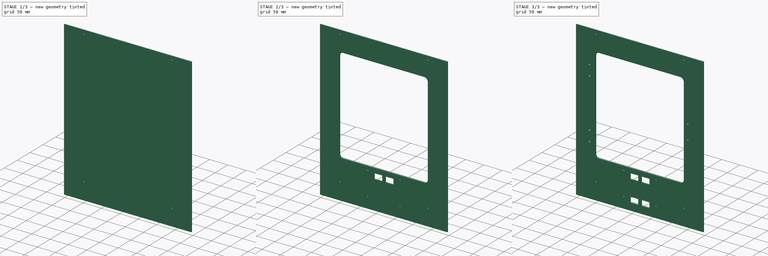
[diagram: build sequence overview — one tinted view per stage of 3, left to right]
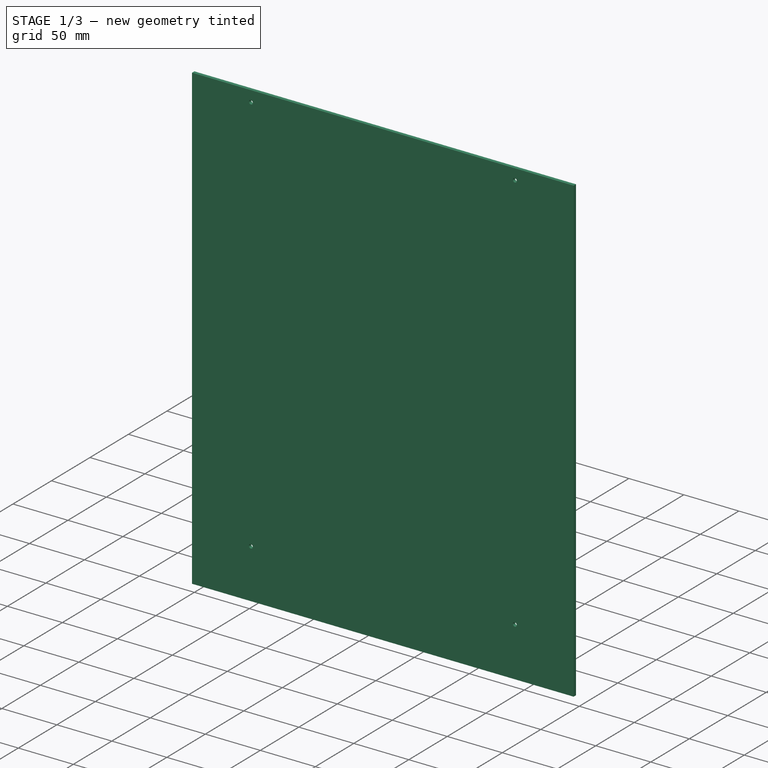
[diagram: stage 1 of 3 — iso view after this stage's code; geometry added in this stage tinted green]
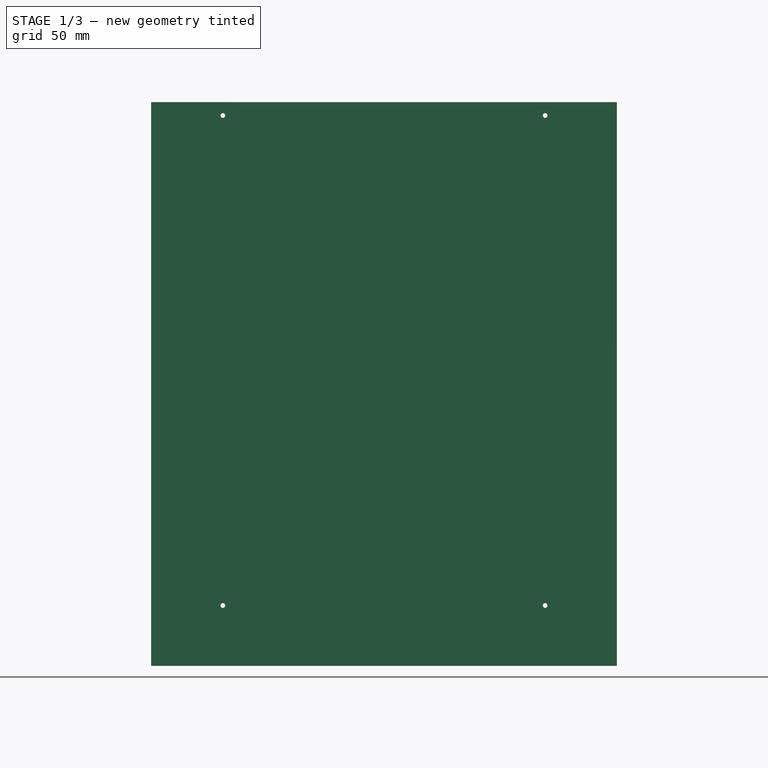
[diagram: stage 1 of 3 — front view after this stage's code; geometry added in this stage tinted green]
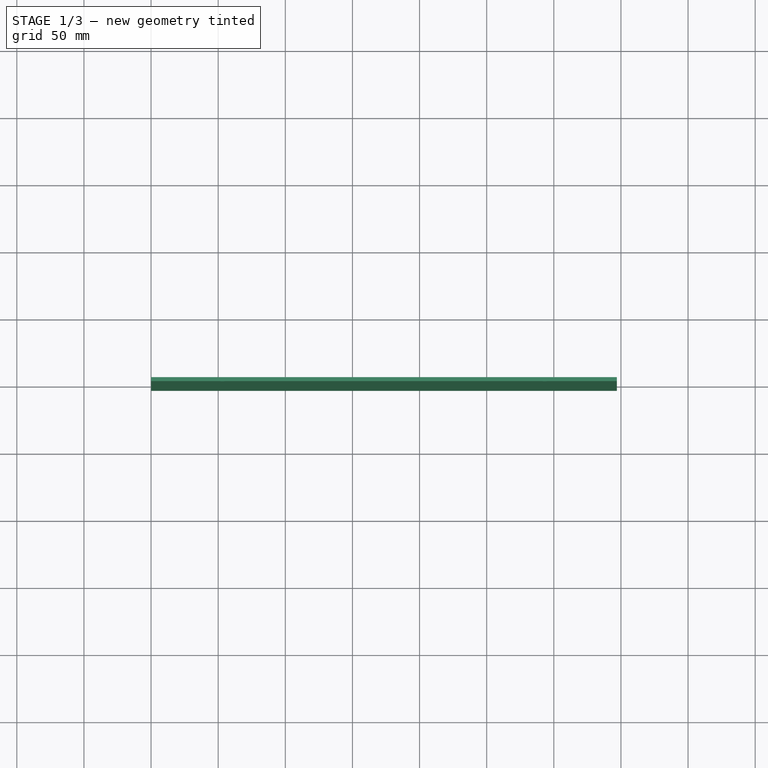
[diagram: stage 1 of 3 — top view after this stage's code; geometry added in this stage tinted green]
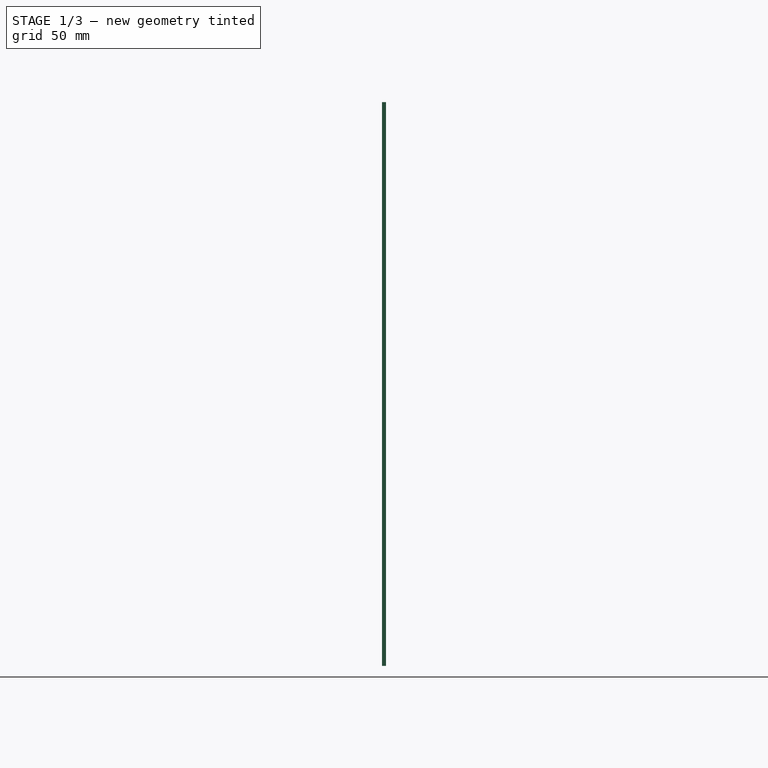
[diagram: stage 1 of 3 — right view after this stage's code; geometry added in this stage tinted green]
FCSTD DOCUMENT  (FreeCAD 0.17R13519 (Git))
Label: Corelia_0_Front_plate_LEGD30311
License: All rights reserved
LicenseURL: http://en.wikipedia.org/wiki/All_rights_reserved
objects: Sketcher::SketchObject×6, PartDesign::Pocket×5, PartDesign::Pad×1, PartDesign::LinearPattern×1, PartDesign::Body×1, TechDraw::DrawSVGTemplate×1, TechDraw::DrawViewPart×1, TechDraw::DrawPage×1
note: 20 computed .brp shape members not serialized (recipe doc carries the construction recipe); baked Part::Feature solids carry a one-line shape summary decoded from their .brp

FEATURE [Sketcher::SketchObject] Sketch
  MapMode = 5
  Placement = pos=(0,0,0) rot=(1,0,0;1.5708rad)
  Support = -> [XZ_Plane]
  sketch-geometry (4):
    g0: LineSegment StartX=0 StartY=0 StartZ=0 EndX=347 EndY=0 EndZ=0
    g1: LineSegment StartX=347 StartY=0 StartZ=0 EndX=347 EndY=420 EndZ=0
    g2: LineSegment StartX=347 StartY=420 StartZ=0 EndX=0 EndY=420 EndZ=0
    g3: LineSegment StartX=0 StartY=420 StartZ=0 EndX=0 EndY=0 EndZ=0
  constraints (11):
    c: Coincident(g0,g1)
    c: Coincident(g1,g2)
    c: Coincident(g2,g3)
    c: Coincident(g3,g0)
    c: Horizontal(g0)
    c: Horizontal(g2)
    c: Vertical(g1)
    c: Vertical(g3)
    c: Coincident(g0,g-1)
    c: DistanceY(g3,g3) = 420
    c: DistanceX(g0,g0) = 347
FEATURE [PartDesign::Pad] Pad
  Length = 3
  Length2 = 100
  Placement = pos=(0,0,0) rot=(1,0,0;1.5708rad)
  Profile = -> Sketch
  Type = 0
FEATURE [Sketcher::SketchObject] Sketch001
  MapMode = 5
  Placement = pos=(0,-3,0) rot=(1,0,0;1.5708rad)
  Support = -> [Pad]
  sketch-geometry (8):
    g0: LineSegment [constr] StartX=53.5 StartY=410 StartZ=0 EndX=293.5 EndY=410 EndZ=0
    g1: LineSegment [constr] StartX=293.5 StartY=410 StartZ=0 EndX=293.5 EndY=45 EndZ=0
    g2: LineSegment [constr] StartX=293.5 StartY=45 StartZ=0 EndX=53.5 EndY=45 EndZ=0
    g3: LineSegment [constr] StartX=53.5 StartY=45 StartZ=0 EndX=53.5 EndY=410 EndZ=0
    g4: Circle CenterX=53.5 CenterY=45 CenterZ=0 NormalX=0 NormalY=0 NormalZ=1 AngleXU=0 Radius=1.75
    g5: Circle CenterX=293.5 CenterY=45 CenterZ=0 NormalX=0 NormalY=0 NormalZ=1 AngleXU=0 Radius=1.75
    g6: Circle CenterX=293.5 CenterY=410 CenterZ=0 NormalX=0 NormalY=0 NormalZ=1 AngleXU=0 Radius=1.75
    g7: Circle CenterX=53.5 CenterY=410 CenterZ=0 NormalX=0 NormalY=0 NormalZ=1 AngleXU=0 Radius=1.75
  constraints (20):
    c: Coincident(g0,g1)
    c: Coincident(g1,g2)
    c: Coincident(g2,g3)
    c: Coincident(g3,g0)
    c: Horizontal(g0)
    c: Horizontal(g2)
    c: Vertical(g1)
    c: Vertical(g3)
    c: Coincident(g4,g2)
    c: Coincident(g5,g1)
    c: Coincident(g6,g0)
    c: Coincident(g7,g0)
    c: Equal(g7,g4)
    c: Equal(g4,g5)
    c: Equal(g5,g6)
    c: Radius(g7) = 1.75
    c: DistanceY(g3,g3) = 365
    c: DistanceX(g0,g0) = 240
    c: DistanceX(g2) = 53.5
    c: DistanceY(g2) = 45
FEATURE [PartDesign::Pocket] Pocket
  BaseFeature = -> Pad
  Length = 5
  Length2 = 100
  Placement = pos=(0,0,0) rot=(1,0,0;1.5708rad)
  Profile = -> Sketch001
  Type = 1
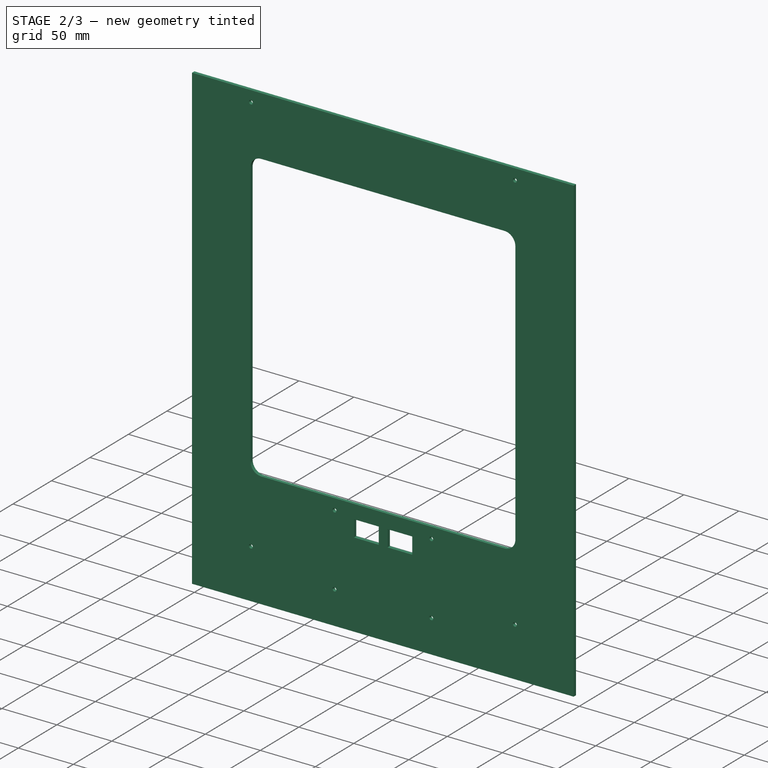
[diagram: stage 2 of 3 — iso view after this stage's code; geometry added in this stage tinted green]
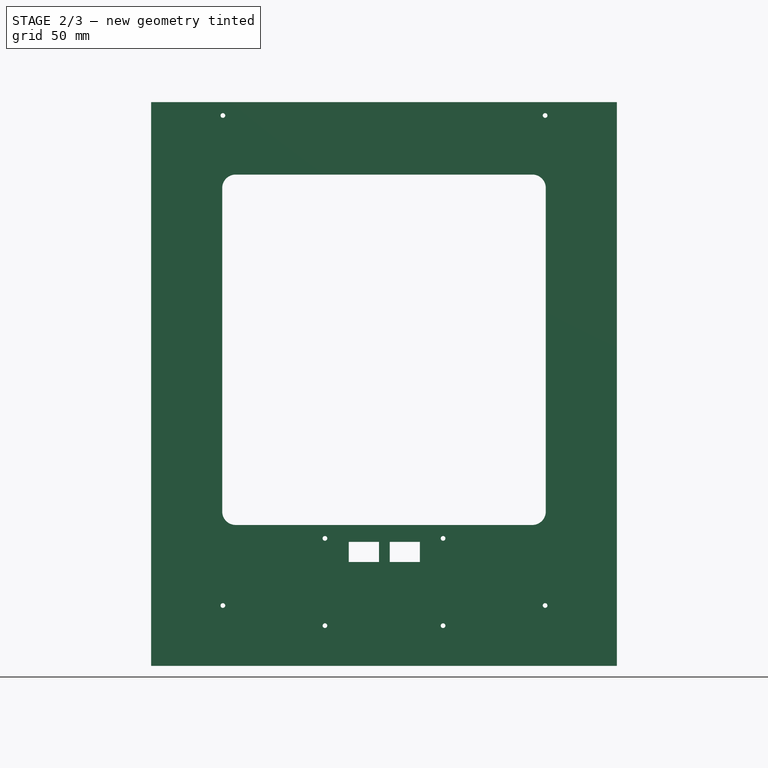
[diagram: stage 2 of 3 — front view after this stage's code; geometry added in this stage tinted green]
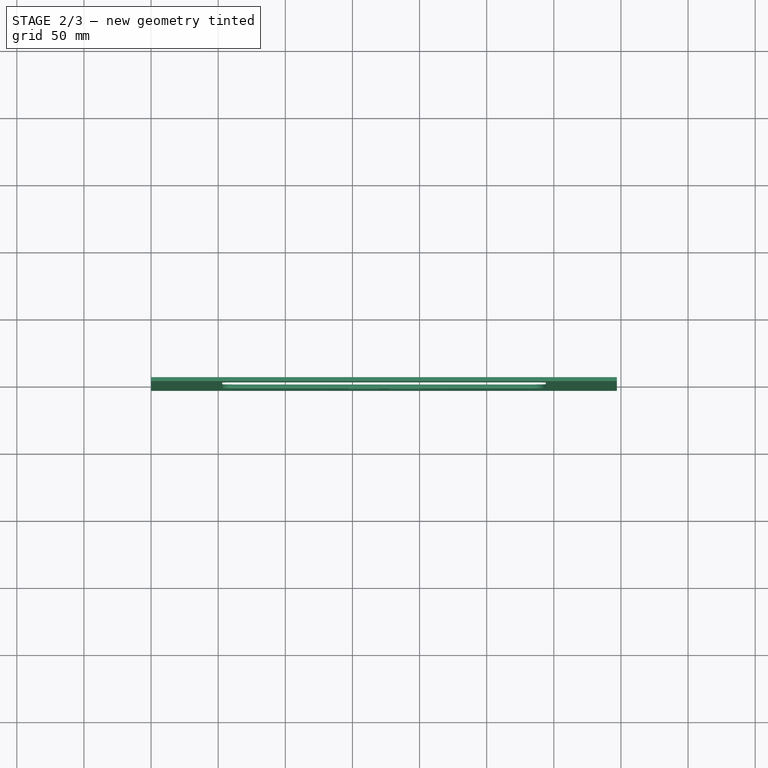
[diagram: stage 2 of 3 — top view after this stage's code; geometry added in this stage tinted green]
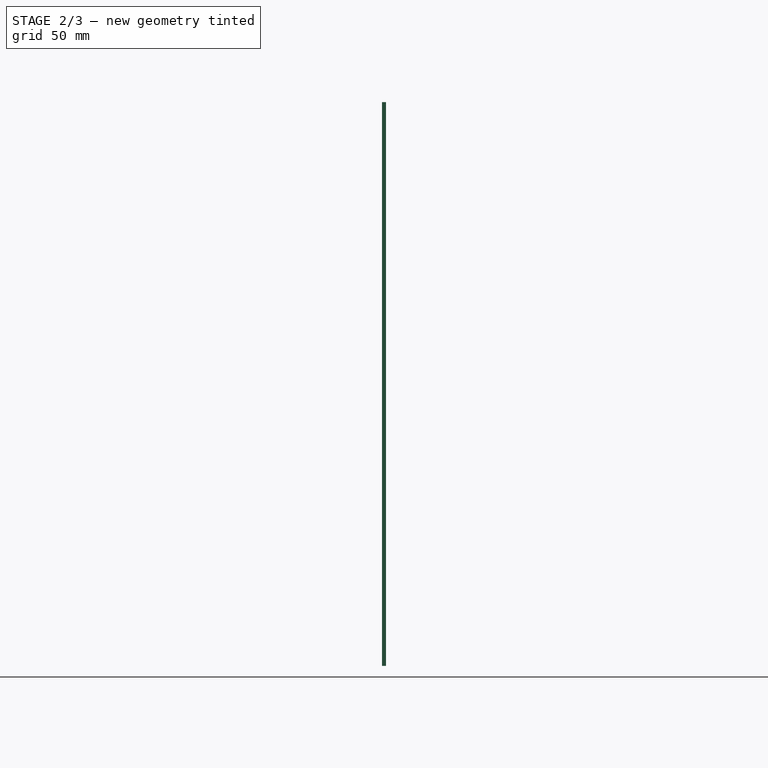
[diagram: stage 2 of 3 — right view after this stage's code; geometry added in this stage tinted green]
FEATURE [Sketcher::SketchObject] Sketch002
  MapMode = 5
  Placement = pos=(0,-3,0) rot=(1,0,0;1.5708rad)
  Support = -> [Pocket]
  sketch-geometry (8):
    g0: LineSegment StartX=53 StartY=356 StartZ=0 EndX=53 EndY=115 EndZ=0
    g1: LineSegment StartX=63 StartY=105 StartZ=0 EndX=284 EndY=105 EndZ=0
    g2: LineSegment StartX=294 StartY=115 StartZ=0 EndX=294 EndY=356 EndZ=0
    g3: LineSegment StartX=284 StartY=366 StartZ=0 EndX=63 EndY=366 EndZ=0
    g4: ArcOfCircle CenterX=63 CenterY=356 CenterZ=0 NormalX=0 NormalY=0 NormalZ=1 AngleXU=0 Radius=10 StartAngle=1.5708 EndAngle=3.14159
    g5: ArcOfCircle CenterX=284 CenterY=356 CenterZ=0 NormalX=0 NormalY=0 NormalZ=1 AngleXU=0 Radius=10 StartAngle=0 EndAngle=1.5708
    g6: ArcOfCircle CenterX=284 CenterY=115 CenterZ=0 NormalX=0 NormalY=0 NormalZ=1 AngleXU=0 Radius=10 StartAngle=4.71239 EndAngle=6.28319
    g7: ArcOfCircle CenterX=63 CenterY=115 CenterZ=0 NormalX=0 NormalY=0 NormalZ=1 AngleXU=0 Radius=10 StartAngle=3.14159 EndAngle=4.71239
  constraints (21):
    c: Vertical(g0)
    c: Vertical(g2)
    c: Horizontal(g3)
    c: Equal(g0,g2)
    c: Horizontal(g1)
    c: Tangent(g0,g4) = -1.5708
    c: Tangent(g3,g4) = -1.5708
    c: Tangent(g2,g5) = -1.5708
    c: Tangent(g3,g5) = -1.5708
    c: Tangent(g2,g6) = -1.5708
    c: Tangent(g0,g7) = -1.5708
    c: Tangent(g1,g7) = -1.5708
    c: Equal(g7,g5)
    c: Equal(g5,g6)
    c: Radius(g4) = 10
    c: DistanceX(g0,g2) = 241
    c: DistanceY(g1,g3) = 261
    c: Coincident(g1,g6)
    c: DistanceX(g-1,g0) = 53
    c: DistanceY(g1) = 105
    c: Equal(g3,g1)
FEATURE [PartDesign::Pocket] Pocket001
  BaseFeature = -> Pocket
  Length = 5
  Length2 = 100
  Placement = pos=(0,0,0) rot=(1,0,0;1.5708rad)
  Profile = -> Sketch002
  Type = 0
FEATURE [Sketcher::SketchObject] Sketch003
  MapMode = 5
  Placement = pos=(0,-3,0) rot=(1,0,0;1.5708rad)
  Support = -> [Pocket001]
  sketch-geometry (8):
    g0: LineSegment [constr] StartX=129.5 StartY=95 StartZ=0 EndX=217.5 EndY=95 EndZ=0
    g1: LineSegment [constr] StartX=217.5 StartY=95 StartZ=0 EndX=217.5 EndY=30 EndZ=0
    g2: LineSegment [constr] StartX=217.5 StartY=30 StartZ=0 EndX=129.5 EndY=30 EndZ=0
    g3: LineSegment [constr] StartX=129.5 StartY=30 StartZ=0 EndX=129.5 EndY=95 EndZ=0
    g4: Circle CenterX=129.5 CenterY=30 CenterZ=0 NormalX=0 NormalY=0 NormalZ=1 AngleXU=0 Radius=1.75
    g5: Circle CenterX=129.5 CenterY=95 CenterZ=0 NormalX=0 NormalY=0 NormalZ=1 AngleXU=0 Radius=1.75
    g6: Circle CenterX=217.5 CenterY=95 CenterZ=0 NormalX=0 NormalY=0 NormalZ=1 AngleXU=0 Radius=1.75
    g7: Circle CenterX=217.5 CenterY=30 CenterZ=0 NormalX=0 NormalY=0 NormalZ=1 AngleXU=0 Radius=1.75
  constraints (20):
    c: Coincident(g0,g1)
    c: Coincident(g1,g2)
    c: Coincident(g2,g3)
    c: Coincident(g3,g0)
    c: Horizontal(g0)
    c: Horizontal(g2)
    c: Vertical(g1)
    c: Vertical(g3)
    c: Coincident(g4,g2)
    c: Coincident(g5,g0)
    c: Coincident(g6,g0)
    c: Coincident(g7,g1)
    c: Equal(g5,g4)
    c: Equal(g4,g7)
    c: Equal(g7,g6)
    c: Radius(g5) = 1.75
    c: DistanceY(g3,g3) = 65
    c: DistanceX(g2,g2) = 88
    c: DistanceX(g2) = 129.5
    c: DistanceY(g2) = 30
FEATURE [PartDesign::Pocket] Pocket002
  BaseFeature = -> Pocket001
  Length = 5
  Length2 = 100
  Placement = pos=(0,0,0) rot=(1,0,0;1.5708rad)
  Profile = -> Sketch003
  Type = 1
FEATURE [Sketcher::SketchObject] Sketch005
  ExternalGeometry = -> [Pocket002]
  MapMode = 5
  Placement = pos=(0,-3,0) rot=(1,0,0;1.5708rad)
  Support = -> [Pocket002]
  sketch-geometry (8):
    g0: LineSegment StartX=147.25 StartY=92.4 StartZ=0 EndX=169.75 EndY=92.4 EndZ=0
    g1: LineSegment StartX=169.75 StartY=92.4 StartZ=0 EndX=169.75 EndY=77.4 EndZ=0
    g2: LineSegment StartX=169.75 StartY=77.4 StartZ=0 EndX=147.25 EndY=77.4 EndZ=0
    g3: LineSegment StartX=147.25 StartY=77.4 StartZ=0 EndX=147.25 EndY=92.4 EndZ=0
    g4: LineSegment StartX=177.75 StartY=92.4 StartZ=0 EndX=200.25 EndY=92.4 EndZ=0
    g5: LineSegment StartX=200.25 StartY=92.4 StartZ=0 EndX=200.25 EndY=77.4 EndZ=0
    g6: LineSegment StartX=200.25 StartY=77.4 StartZ=0 EndX=177.75 EndY=77.4 EndZ=0
    g7: LineSegment StartX=177.75 StartY=77.4 StartZ=0 EndX=177.75 EndY=92.4 EndZ=0
  constraints (24):
    c: Coincident(g0,g1)
    c: Coincident(g1,g2)
    c: Coincident(g2,g3)
    c: Coincident(g3,g0)
    c: Horizontal(g0)
    c: Horizontal(g2)
    c: Vertical(g1)
    c: Vertical(g3)
    c: Coincident(g4,g5)
    c: Coincident(g5,g6)
    c: Coincident(g6,g7)
    c: Coincident(g7,g4)
    c: Horizontal(g4)
    c: Horizontal(g6)
    c: Vertical(g5)
    c: Vertical(g7)
    c: Equal(g3,g7)
    c: Equal(g0,g4)
    c: PointOnObject(g4,g0)
    c: DistanceX(g0,g4) = 8
    c: DistanceX(g0,g0) = 22.5
    c: DistanceY(g3,g3) = 15
    c: DistanceX(g2) = 147.25
    c: DistanceY(g2) = 77.4
FEATURE [PartDesign::Pocket] Pocket003
  BaseFeature = -> Pocket002
  Length = 3
  Length2 = 100
  Placement = pos=(0,0,0) rot=(1,0,0;1.5708rad)
  Profile = -> Sketch005
  Type = 0
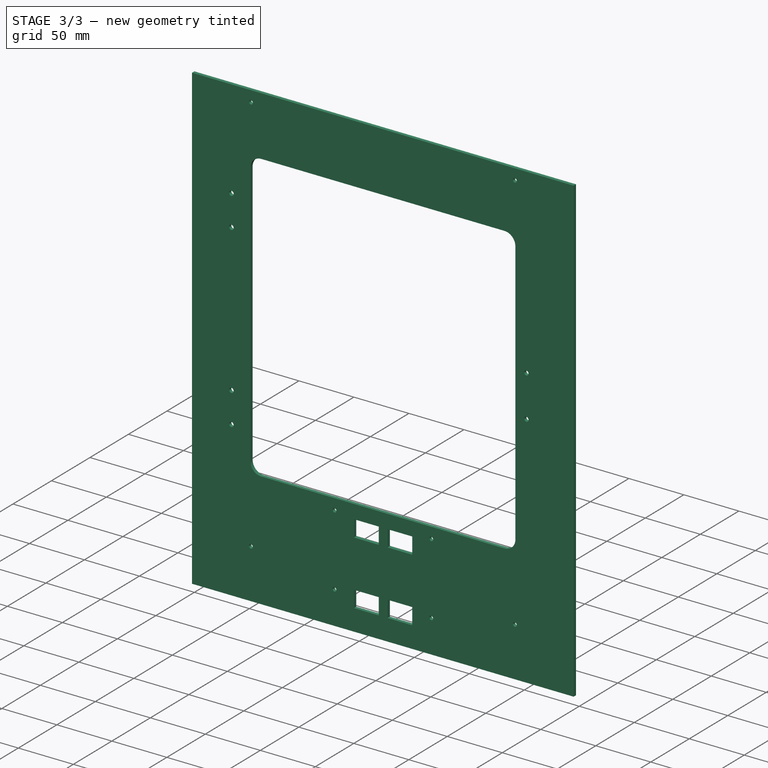
[diagram: stage 3 of 3 — iso view after this stage's code; geometry added in this stage tinted green]
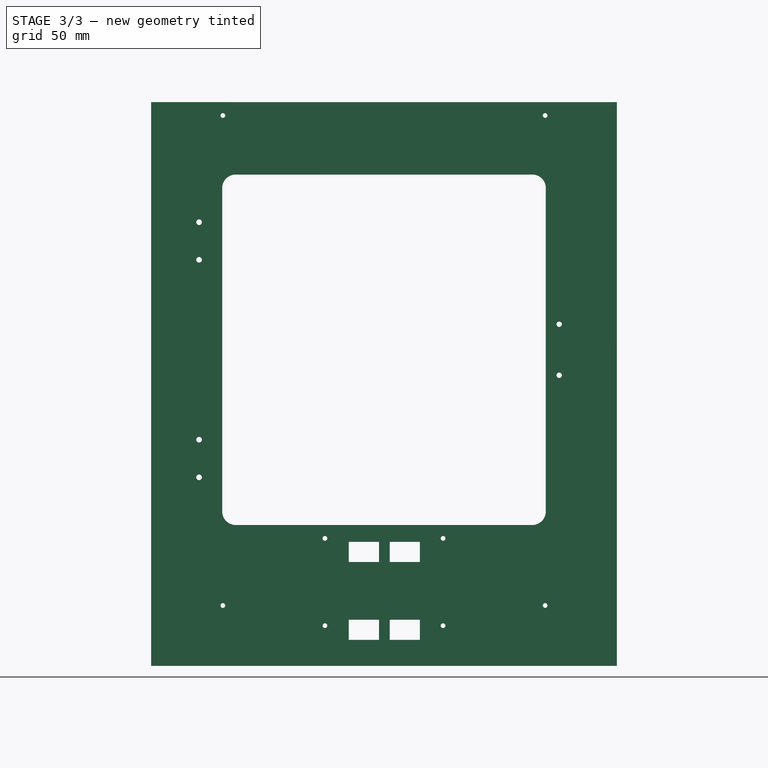
[diagram: stage 3 of 3 — front view after this stage's code; geometry added in this stage tinted green]
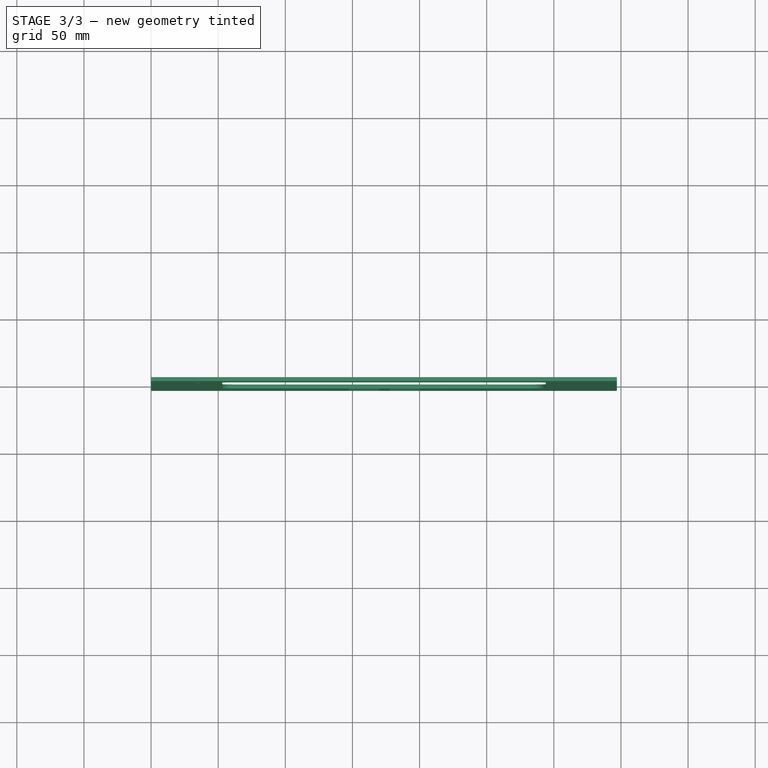
[diagram: stage 3 of 3 — top view after this stage's code; geometry added in this stage tinted green]
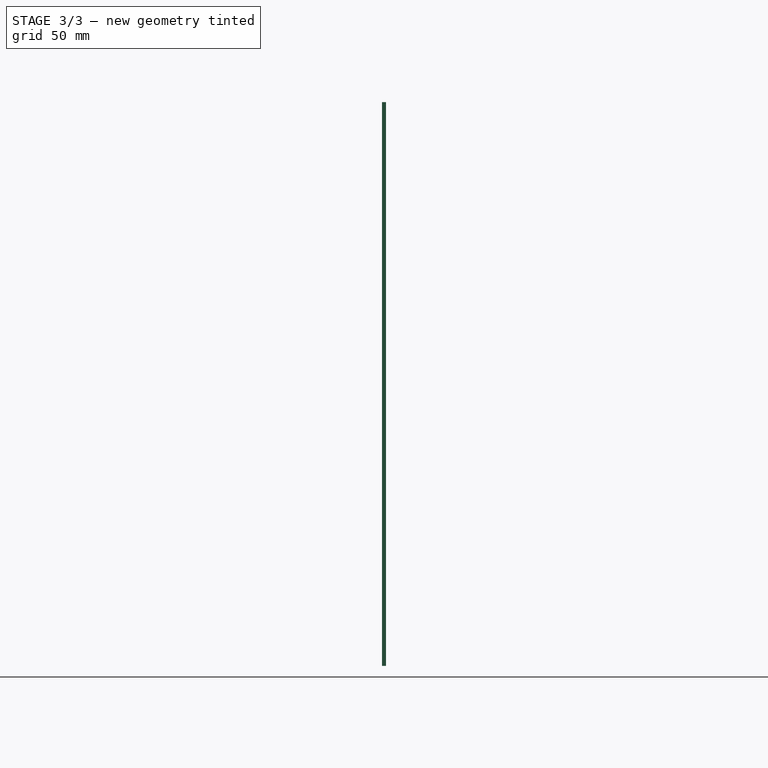
[diagram: stage 3 of 3 — right view after this stage's code; geometry added in this stage tinted green]
FEATURE [PartDesign::LinearPattern] LinearPattern
  BaseFeature = -> Pocket003
  Direction = -> Sketch005 [V_Axis]
  Length = 58
  Occurrences = 2
  Originals = -> [Pocket003]
  Placement = pos=(0,0,0) rot=(1,0,0;1.5708rad)
  Reversed = true
FEATURE [Sketcher::SketchObject] Sketch006
  MapMode = 5
  Placement = pos=(0,-3,0) rot=(1,0,0;1.5708rad)
  Support = -> [LinearPattern]
  sketch-geometry (9):
    g0: Circle CenterX=35.75 CenterY=330.5 CenterZ=0 NormalX=0 NormalY=0 NormalZ=1 AngleXU=0 Radius=2.1
    g1: Circle CenterX=35.75 CenterY=302.5 CenterZ=0 NormalX=0 NormalY=0 NormalZ=1 AngleXU=0 Radius=2.1
    g2: Circle CenterX=35.75 CenterY=168.5 CenterZ=0 NormalX=0 NormalY=0 NormalZ=1 AngleXU=0 Radius=2.1
    g3: Circle CenterX=35.75 CenterY=140.5 CenterZ=0 NormalX=0 NormalY=0 NormalZ=1 AngleXU=0 Radius=2.1
    g4: LineSegment [constr] StartX=35.75 StartY=330.5 StartZ=0 EndX=35.75 EndY=302.5 EndZ=0
    g5: LineSegment [constr] StartX=35.75 StartY=168.5 StartZ=0 EndX=35.75 EndY=140.5 EndZ=0
    g6: Circle CenterX=304 CenterY=254.5 CenterZ=0 NormalX=0 NormalY=0 NormalZ=1 AngleXU=0 Radius=2
    g7: Circle CenterX=304 CenterY=216.5 CenterZ=0 NormalX=0 NormalY=0 NormalZ=1 AngleXU=0 Radius=2
    g8: LineSegment [constr] StartX=304 StartY=254.5 StartZ=0 EndX=304 EndY=216.5 EndZ=0
  constraints (24):
    c: Coincident(g4,g0)
    c: Coincident(g4,g1)
    c: Vertical(g4)
    c: Coincident(g5,g2)
    c: Coincident(g5,g3)
    c: Vertical(g5)
    c: Equal(g0,g1)
    c: Equal(g1,g2)
    c: Equal(g2,g3)
    c: Equal(g4,g5)
    c: DistanceY(g4,g4) = 28
    c: PointOnObject(g2,g4)
    c: Radius(g0) = 2.1
    c: DistanceY(g2,g1) = 134
    c: DistanceX(g3) = 35.75
    c: DistanceY(g3) = 140.5
    c: Equal(g7,g6)
    c: Coincident(g8,g6)
    c: Coincident(g8,g7)
    c: Vertical(g8)
    c: DistanceY(g8,g8) = 38
    c: DistanceX(g7) = 304
    c: DistanceY(g7) = 216.5
    c: Radius(g6) = 2
FEATURE [PartDesign::Pocket] Pocket004
  BaseFeature = -> LinearPattern
  Length = 5
  Length2 = 100
  Placement = pos=(0,0,0) rot=(1,0,0;1.5708rad)
  Profile = -> Sketch006
  Type = 1
FEATURE [PartDesign::Body] Body
  Group = -> [Sketch,Pad,Sketch001,Pocket,Sketch002,Pocket001,Sketch003,Pocket002,Sketch005,Pocket003,LinearPattern,Sketch006,Pocket004]
  Origin = -> Origin
  Tip = -> Pocket004
FEATURE [TechDraw::DrawSVGTemplate] Template
  Height = 420
  Orientation = 1
  Width = 594
FEATURE [TechDraw::DrawViewPart] View
  CoarseView = false
  Direction = (0,-1,0)
  Focus = 100
  HardHidden = false
  IsoCount = 0
  IsoHidden = false
  IsoVisible = false
  LockPosition = false
  Perspective = false
  Rotation = 90
  ScaleType = 0
  SeamHidden = false
  SeamVisible = false
  SmoothHidden = false
  SmoothVisible = false
  Source = -> [Pocket004]
  X = 297
  Y = 210
FEATURE [TechDraw::DrawPage] Page
  KeepUpdated = true
  ProjectionType = 0
  Template = -> Template
  Views = -> [View]
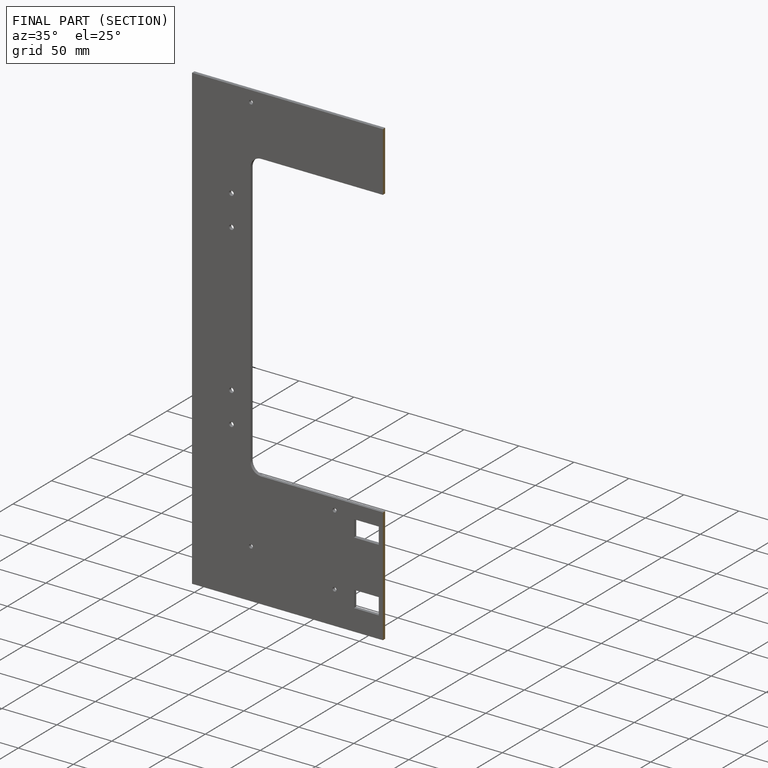
[diagram: finished part — half-section view (interior)]
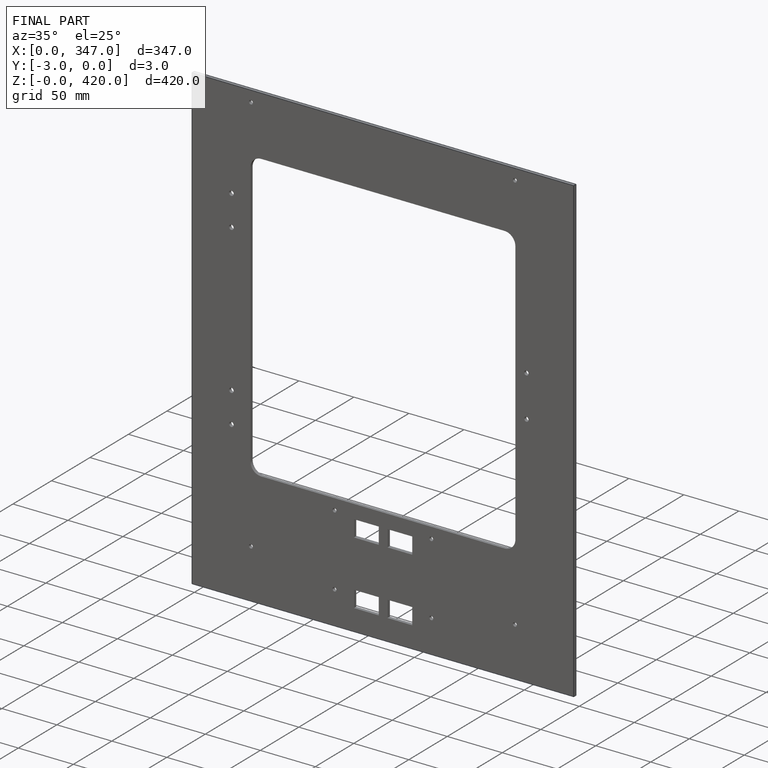
[diagram: finished part — iso view with bounding-box wireframe]
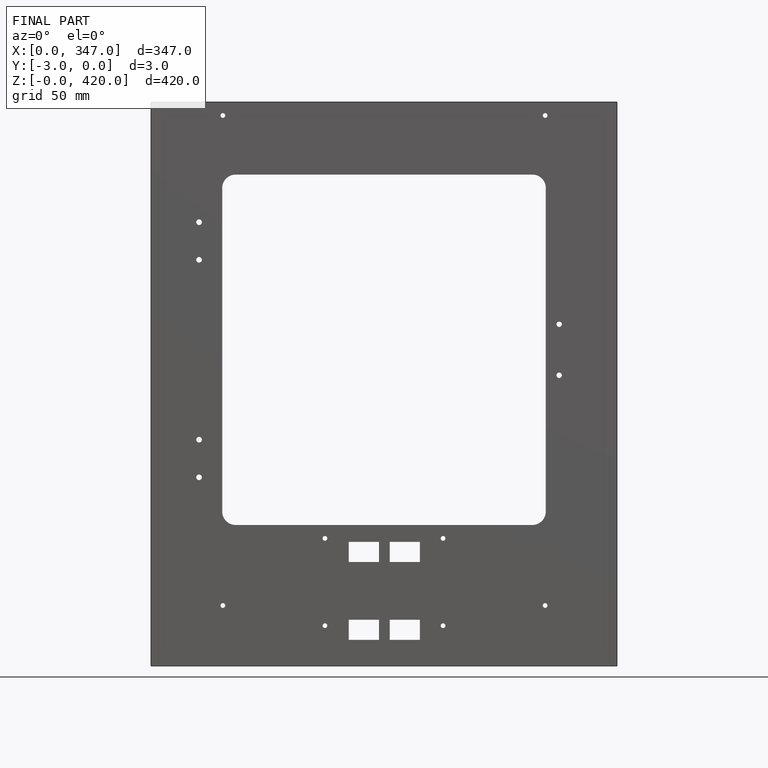
[diagram: finished part — front view with bounding-box wireframe]
